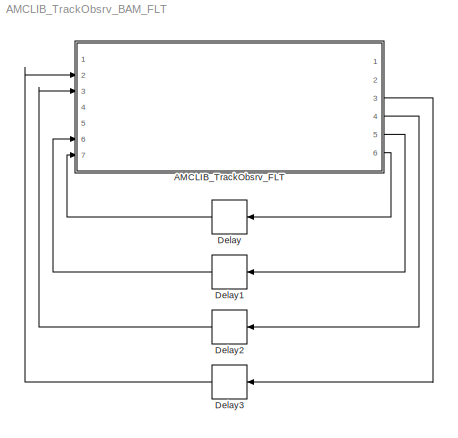
MODEL AMCLIB_TrackObsrv_BAM_FLT
KIND model
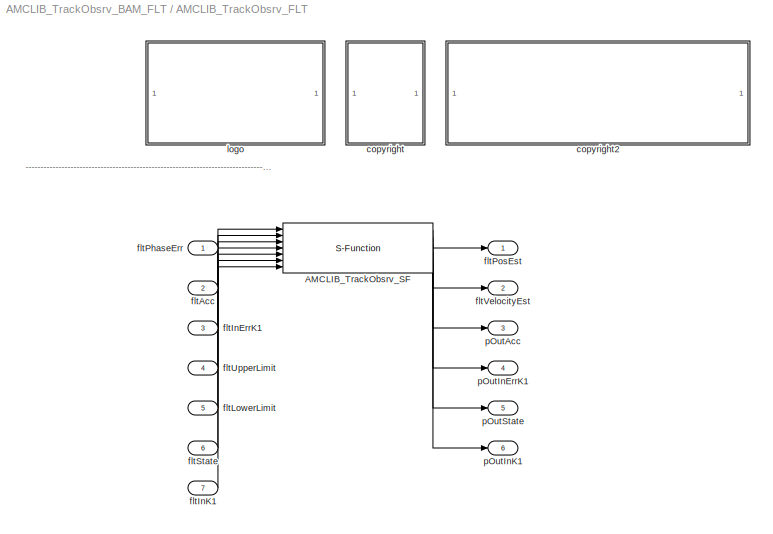
BLOCK [SubSystem] AMCLIB_TrackObsrv_FLT
  Ports = [7, 6]
  RequestExecContextInheritance = off
  SID = 1
BLOCK [S-Function] AMCLIB_TrackObsrv_FLT/AMCLIB_TrackObsrv_SF
  EnableBusSupport = off
  FunctionName = AMCLIB_TrackObsrv_SF_FLT
  Parameters = fltCC1,fltCC2,fltC1
  Ports = [7, 6]
  SID = 4
BLOCK [SubSystem] AMCLIB_TrackObsrv_FLT/<copyright redacted>
  Ports = []
  RequestExecContextInheritance = off
  SID = 22
BLOCK [SubSystem] AMCLIB_TrackObsrv_FLT/copyright2
  Ports = []
  RequestExecContextInheritance = off
  SID = 25
BLOCK [Inport] AMCLIB_TrackObsrv_FLT/fltAcc
  IconDisplay = Port number
  Port = 2
  SID = 6
BLOCK [Inport] AMCLIB_TrackObsrv_FLT/fltInErrK1
  IconDisplay = Port number
  Port = 3
  SID = 7
BLOCK [Inport] AMCLIB_TrackObsrv_FLT/fltInK1
  IconDisplay = Port number
  Port = 7
  SID = 11
BLOCK [Inport] AMCLIB_TrackObsrv_FLT/fltLowerLimit
  IconDisplay = Port number
  Port = 5
  SID = 9
BLOCK [Inport] AMCLIB_TrackObsrv_FLT/fltPhaseErr
  IconDisplay = Port number
  SID = 5
BLOCK [Outport] AMCLIB_TrackObsrv_FLT/fltPosEst
  IconDisplay = Port number
  SID = 12
BLOCK [Inport] AMCLIB_TrackObsrv_FLT/fltState
  IconDisplay = Port number
  Port = 6
  SID = 10
BLOCK [Inport] AMCLIB_TrackObsrv_FLT/fltUpperLimit
  IconDisplay = Port number
  Port = 4
  SID = 8
BLOCK [Outport] AMCLIB_TrackObsrv_FLT/fltVelocityEst
  IconDisplay = Port number
  Port = 2
  SID = 13
BLOCK [SubSystem] AMCLIB_TrackObsrv_FLT/logo
  Ports = []
  RequestExecContextInheritance = off
  SID = 18
BLOCK [Outport] AMCLIB_TrackObsrv_FLT/pOutAcc
  IconDisplay = Port number
  Port = 3
  SID = 14
BLOCK [Outport] AMCLIB_TrackObsrv_FLT/pOutInErrK1
  IconDisplay = Port number
  Port = 4
  SID = 15
BLOCK [Outport] AMCLIB_TrackObsrv_FLT/pOutInK1
  IconDisplay = Port number
  Port = 6
  SID = 17
BLOCK [Outport] AMCLIB_TrackObsrv_FLT/pOutState
  IconDisplay = Port number
  Port = 5
  SID = 16
BLOCK [Delay] Delay
  DelayLength = 1
  InitialCondition = 0
  InputPortMap = u0
  Ports = [1, 1]
  SID = 28
BLOCK [Delay] Delay1
  DelayLength = 1
  InitialCondition = 0
  InputPortMap = u0
  Ports = [1, 1]
  SID = 29
BLOCK [Delay] Delay2
  DelayLength = 1
  InitialCondition = 0
  InputPortMap = u0
  Ports = [1, 1]
  SID = 30
BLOCK [Delay] Delay3
  DelayLength = 1
  InitialCondition = 0
  InputPortMap = u0
  Ports = [1, 1]
  SID = 31
ANNOTATION AMCLIB_TrackObsrv_FLT: ---------------------------------------------------------------------------------------------------------------------------------------------------------------------------------------------------
LINE AMCLIB_TrackObsrv_FLT/AMCLIB_TrackObsrv_SF:1 -> AMCLIB_TrackObsrv_FLT/fltPosEst:1
LINE AMCLIB_TrackObsrv_FLT/AMCLIB_TrackObsrv_SF:2 -> AMCLIB_TrackObsrv_FLT/fltVelocityEst:1
LINE AMCLIB_TrackObsrv_FLT/AMCLIB_TrackObsrv_SF:3 -> AMCLIB_TrackObsrv_FLT/pOutAcc:1
LINE AMCLIB_TrackObsrv_FLT/AMCLIB_TrackObsrv_SF:4 -> AMCLIB_TrackObsrv_FLT/pOutInErrK1:1
LINE AMCLIB_TrackObsrv_FLT/AMCLIB_TrackObsrv_SF:5 -> AMCLIB_TrackObsrv_FLT/pOutState:1
LINE AMCLIB_TrackObsrv_FLT/AMCLIB_TrackObsrv_SF:6 -> AMCLIB_TrackObsrv_FLT/pOutInK1:1
LINE AMCLIB_TrackObsrv_FLT/fltAcc:1 -> AMCLIB_TrackObsrv_FLT/AMCLIB_TrackObsrv_SF:2
LINE AMCLIB_TrackObsrv_FLT/fltInErrK1:1 -> AMCLIB_TrackObsrv_FLT/AMCLIB_TrackObsrv_SF:3
LINE AMCLIB_TrackObsrv_FLT/fltInK1:1 -> AMCLIB_TrackObsrv_FLT/AMCLIB_TrackObsrv_SF:7
LINE AMCLIB_TrackObsrv_FLT/fltLowerLimit:1 -> AMCLIB_TrackObsrv_FLT/AMCLIB_TrackObsrv_SF:5
LINE AMCLIB_TrackObsrv_FLT/fltPhaseErr:1 -> AMCLIB_TrackObsrv_FLT/AMCLIB_TrackObsrv_SF:1
LINE AMCLIB_TrackObsrv_FLT/fltState:1 -> AMCLIB_TrackObsrv_FLT/AMCLIB_TrackObsrv_SF:6
LINE AMCLIB_TrackObsrv_FLT/fltUpperLimit:1 -> AMCLIB_TrackObsrv_FLT/AMCLIB_TrackObsrv_SF:4
LINE AMCLIB_TrackObsrv_FLT:3 -> Delay3:1
LINE AMCLIB_TrackObsrv_FLT:4 -> Delay2:1
LINE AMCLIB_TrackObsrv_FLT:5 -> Delay1:1
LINE AMCLIB_TrackObsrv_FLT:6 -> Delay:1
LINE Delay1:1 -> AMCLIB_TrackObsrv_FLT:6
LINE Delay2:1 -> AMCLIB_TrackObsrv_FLT:3
LINE Delay3:1 -> AMCLIB_TrackObsrv_FLT:2
LINE Delay:1 -> AMCLIB_TrackObsrv_FLT:7
